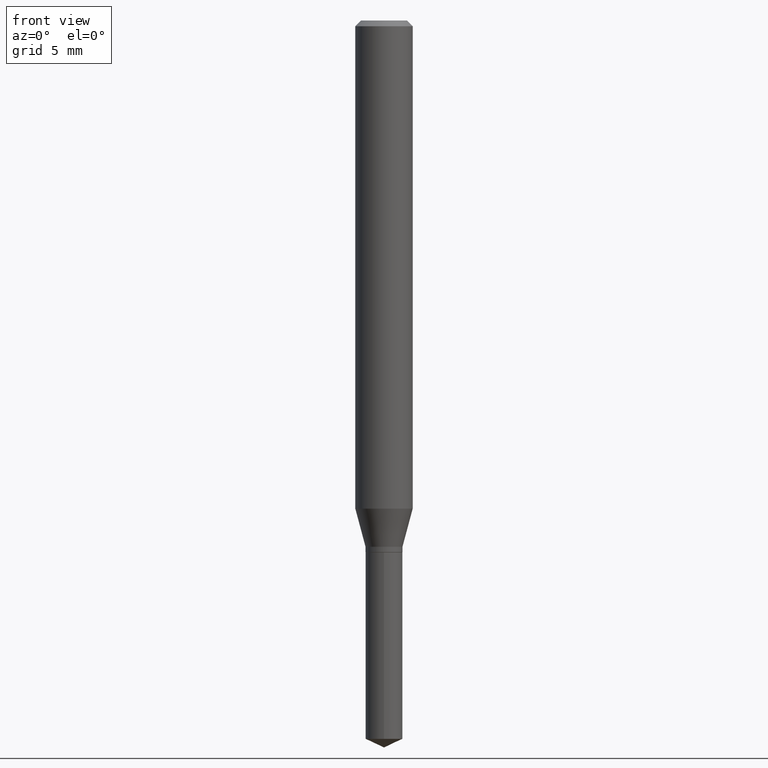
[diagram: clean part render]
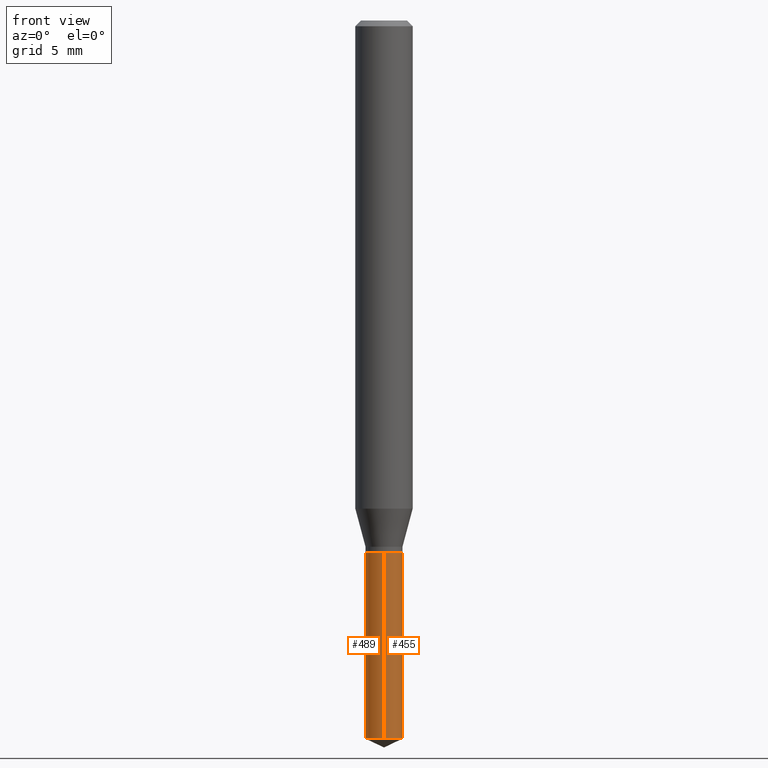
[diagram: same view with one multi-face feature highlighted, each face labeled with its STEP entity id]
A machine part, front view. The highlighted faces form ONE feature: a constant-radius fillet chain: 2 tangent blend faces with common blend radius 0.9652 mm. The faces share edges in the B-rep.
Their STEP definitions:
[1] entity #489 (Cylinder):
#7 = VECTOR ( 'NONE', #154, 39.37007874015748143 ) ;
#17 = CYLINDRICAL_SURFACE ( 'NONE', #250, 0.03799999999999999906 ) ;
#21 = CIRCLE ( 'NONE', #398, 0.03799999999999999906 ) ;
#39 = CARTESIAN_POINT ( 'NONE',  ( 2.700062395888742036E-16, 0.03799999999999617573, -1.094500000000000028 ) ) ;
#50 = FACE_OUTER_BOUND ( 'NONE', #356, .T. ) ;
#65 = CIRCLE ( 'NONE', #316, 0.03799999999999999906 ) ;
#89 = EDGE_CURVE ( 'NONE', #457, #391, #65, .T. ) ;
#96 = VERTEX_POINT ( 'NONE', #413 ) ;
#102 = DIRECTION ( 'NONE',  ( -2.445458899330790108E-29, 3.491495526022433205E-15, 1.000000000000000000 ) ) ;
#113 = LINE ( 'NONE', #456, #7 ) ;
#118 = ORIENTED_EDGE ( 'NONE', *, *, #89, .T. ) ;
#131 = ORIENTED_EDGE ( 'NONE', *, *, #205, .T. ) ;
#151 = DIRECTION ( 'NONE',  ( -2.445458899330790108E-29, 3.491495526022433599E-15, 1.000000000000000000 ) ) ;
#154 = DIRECTION ( 'NONE',  ( -2.445458899330790108E-29, 3.491495526022433599E-15, 1.000000000000000000 ) ) ;
#165 = DIRECTION ( 'NONE',  ( -6.982962677686265922E-15, -1.000000000000000000, 3.594536833768767206E-15 ) ) ;
#201 = CARTESIAN_POINT ( 'NONE',  ( -2.653525817520513354E-16, -0.03800000000000381545, -1.094499999999999806 ) ) ;
#205 = EDGE_CURVE ( 'NONE', #391, #96, #312, .T. ) ;
#206 = CARTESIAN_POINT ( 'NONE',  ( 2.676565608369631794E-29, -3.821426325363822773E-15, -1.094499999999999806 ) ) ;
#215 = ORIENTED_EDGE ( 'NONE', *, *, #436, .F. ) ;
#244 = CARTESIAN_POINT ( 'NONE',  ( -2.653525817520418691E-16, -0.03800000000000514772, -1.478380308990109970 ) ) ;
#250 = AXIS2_PLACEMENT_3D ( 'NONE', #402, #471, #165 ) ;
#293 = EDGE_CURVE ( 'NONE', #457, #359, #113, .T. ) ;
#294 = DIRECTION ( 'NONE',  ( -6.982962677686265922E-15, -1.000000000000000000, 3.594536833768767206E-15 ) ) ;
#312 = LINE ( 'NONE', #201, #474 ) ;
#316 = AXIS2_PLACEMENT_3D ( 'NONE', #378, #102, #381 ) ;
#326 = CARTESIAN_POINT ( 'NONE',  ( 2.700062395888741050E-16, 0.03799999999999482958, -1.478380308990109970 ) ) ;
#353 = ORIENTED_EDGE ( 'NONE', *, *, #293, .F. ) ;
#356 = EDGE_LOOP ( 'NONE', ( #353, #118, #131, #215 ) ) ;
#359 = VERTEX_POINT ( 'NONE', #39 ) ;
#378 = CARTESIAN_POINT ( 'NONE',  ( 3.615329126267350293E-29, -5.161742706730900890E-15, -1.478380308990109970 ) ) ;
#381 = DIRECTION ( 'NONE',  ( -6.982962677686265922E-15, -1.000000000000000000, 0.000000000000000000 ) ) ;
#391 = VERTEX_POINT ( 'NONE', #244 ) ;
#398 = AXIS2_PLACEMENT_3D ( 'NONE', #206, #467, #294 ) ;
#402 = CARTESIAN_POINT ( 'NONE',  ( 2.676565608369631794E-29, -3.821426325363822773E-15, -1.094499999999999806 ) ) ;
#413 = CARTESIAN_POINT ( 'NONE',  ( -2.653525817520513354E-16, -0.03800000000000381545, -1.094499999999999806 ) ) ;
#436 = EDGE_CURVE ( 'NONE', #359, #96, #21, .T. ) ;
#456 = CARTESIAN_POINT ( 'NONE',  ( 2.700062395888647866E-16, 0.03799999999999617573, -1.094500000000000028 ) ) ;
#457 = VERTEX_POINT ( 'NONE', #326 ) ;
#467 = DIRECTION ( 'NONE',  ( -2.445458899330790108E-29, 3.491495526022433205E-15, 1.000000000000000000 ) ) ;
#471 = DIRECTION ( 'NONE',  ( -2.445458899330790108E-29, 3.491495526022433205E-15, 1.000000000000000000 ) ) ;
#474 = VECTOR ( 'NONE', #151, 39.37007874015748143 ) ;
#489 = ADVANCED_FACE ( 'NONE', ( #50 ), #17, .T. ) ;
[2] entity #455 (Cylinder):
#7 = VECTOR ( 'NONE', #154, 39.37007874015748143 ) ;
#15 = DIRECTION ( 'NONE',  ( -2.445458899330790108E-29, 3.491495526022433205E-15, 1.000000000000000000 ) ) ;
#39 = CARTESIAN_POINT ( 'NONE',  ( 2.700062395888742036E-16, 0.03799999999999617573, -1.094500000000000028 ) ) ;
#46 = CARTESIAN_POINT ( 'NONE',  ( 2.676565608369631794E-29, -3.821426325363822773E-15, -1.094499999999999806 ) ) ;
#53 = EDGE_CURVE ( 'NONE', #391, #457, #178, .T. ) ;
#68 = CARTESIAN_POINT ( 'NONE',  ( 3.615329126267350293E-29, -5.161742706730900890E-15, -1.478380308990109970 ) ) ;
#84 = FACE_OUTER_BOUND ( 'NONE', #478, .T. ) ;
#96 = VERTEX_POINT ( 'NONE', #413 ) ;
#113 = LINE ( 'NONE', #456, #7 ) ;
#136 = CIRCLE ( 'NONE', #274, 0.03799999999999999906 ) ;
#151 = DIRECTION ( 'NONE',  ( -2.445458899330790108E-29, 3.491495526022433599E-15, 1.000000000000000000 ) ) ;
#154 = DIRECTION ( 'NONE',  ( -2.445458899330790108E-29, 3.491495526022433599E-15, 1.000000000000000000 ) ) ;
#162 = DIRECTION ( 'NONE',  ( -6.982962677686265922E-15, -1.000000000000000000, 3.594536833768767206E-15 ) ) ;
#167 = DIRECTION ( 'NONE',  ( -2.445458899330790108E-29, 3.491495526022433205E-15, 1.000000000000000000 ) ) ;
#178 = CIRCLE ( 'NONE', #195, 0.03799999999999999906 ) ;
#189 = AXIS2_PLACEMENT_3D ( 'NONE', #46, #15, #162 ) ;
#195 = AXIS2_PLACEMENT_3D ( 'NONE', #68, #451, #262 ) ;
#201 = CARTESIAN_POINT ( 'NONE',  ( -2.653525817520513354E-16, -0.03800000000000381545, -1.094499999999999806 ) ) ;
#205 = EDGE_CURVE ( 'NONE', #391, #96, #312, .T. ) ;
#213 = ORIENTED_EDGE ( 'NONE', *, *, #399, .F. ) ;
#244 = CARTESIAN_POINT ( 'NONE',  ( -2.653525817520418691E-16, -0.03800000000000514772, -1.478380308990109970 ) ) ;
#253 = DIRECTION ( 'NONE',  ( -6.982962677686265922E-15, -1.000000000000000000, 3.594536833768767206E-15 ) ) ;
#262 = DIRECTION ( 'NONE',  ( -6.982962677686265922E-15, -1.000000000000000000, 0.000000000000000000 ) ) ;
#274 = AXIS2_PLACEMENT_3D ( 'NONE', #431, #167, #253 ) ;
#293 = EDGE_CURVE ( 'NONE', #457, #359, #113, .T. ) ;
#312 = LINE ( 'NONE', #201, #474 ) ;
#319 = ORIENTED_EDGE ( 'NONE', *, *, #205, .F. ) ;
#326 = CARTESIAN_POINT ( 'NONE',  ( 2.700062395888741050E-16, 0.03799999999999482958, -1.478380308990109970 ) ) ;
#332 = ORIENTED_EDGE ( 'NONE', *, *, #293, .T. ) ;
#359 = VERTEX_POINT ( 'NONE', #39 ) ;
#391 = VERTEX_POINT ( 'NONE', #244 ) ;
#394 = CYLINDRICAL_SURFACE ( 'NONE', #189, 0.03799999999999999906 ) ;
#399 = EDGE_CURVE ( 'NONE', #96, #359, #136, .T. ) ;
#413 = CARTESIAN_POINT ( 'NONE',  ( -2.653525817520513354E-16, -0.03800000000000381545, -1.094499999999999806 ) ) ;
#427 = ORIENTED_EDGE ( 'NONE', *, *, #53, .T. ) ;
#431 = CARTESIAN_POINT ( 'NONE',  ( 2.676565608369631794E-29, -3.821426325363822773E-15, -1.094499999999999806 ) ) ;
#451 = DIRECTION ( 'NONE',  ( -2.445458899330790108E-29, 3.491495526022433205E-15, 1.000000000000000000 ) ) ;
#455 = ADVANCED_FACE ( 'NONE', ( #84 ), #394, .T. ) ;
#456 = CARTESIAN_POINT ( 'NONE',  ( 2.700062395888647866E-16, 0.03799999999999617573, -1.094500000000000028 ) ) ;
#457 = VERTEX_POINT ( 'NONE', #326 ) ;
#474 = VECTOR ( 'NONE', #151, 39.37007874015748143 ) ;
#478 = EDGE_LOOP ( 'NONE', ( #427, #332, #213, #319 ) ) ;